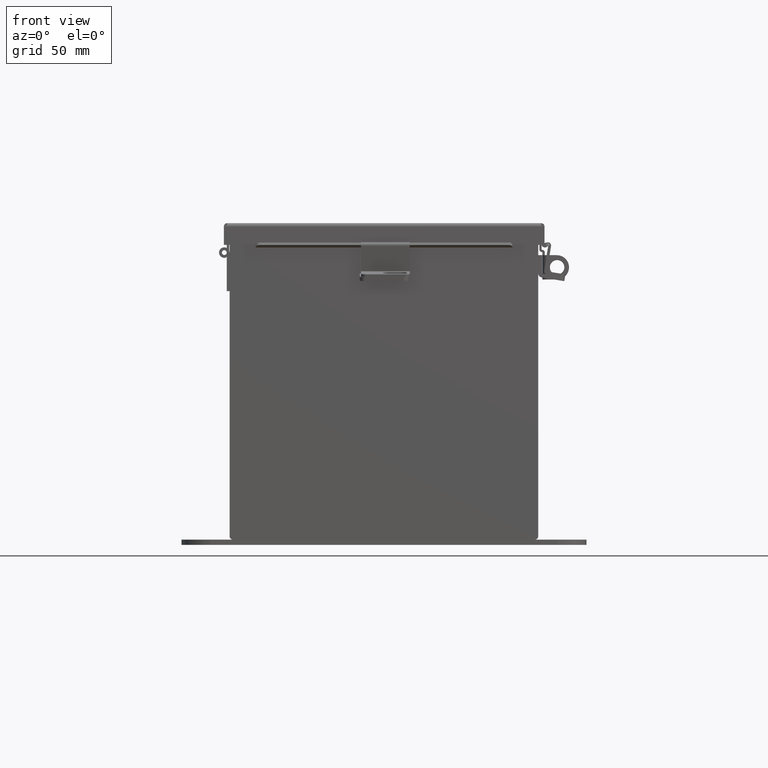
[diagram: clean part render]
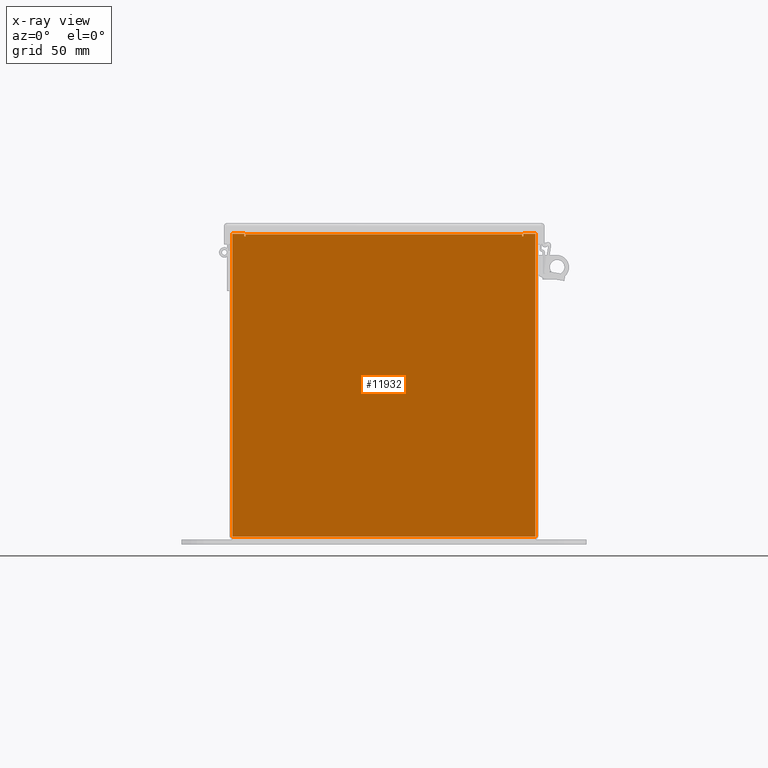
[diagram: x-ray — body ghosted, one internal face saturated and labeled with its STEP entity id]
A machine part, front view, then the same camera in x-ray: the body is ghosted and one INTERNAL B-rep face — a face not visible from any outside direction — is saturated and labeled: STEP entity #11932.
In plain terms, the highlighted planar face has unit normal (-0, 1, -0).
Its self-contained STEP definition (entity closure, byte-faithful):
#96 = LINE ( 'NONE', #11347, #15571 ) ;
#113 = EDGE_CURVE ( 'NONE', #3539, #4014, #7547, .T. ) ;
#358 = LINE ( 'NONE', #15336, #741 ) ;
#423 = VERTEX_POINT ( 'NONE', #2532 ) ;
#507 = DIRECTION ( 'NONE',  ( -1.000000000000000000, -5.526334185345597900E-031, 0.0000000000000000000 ) ) ;
#656 = DIRECTION ( 'NONE',  ( 0.0000000000000000000, 0.0000000000000000000, -1.000000000000000000 ) ) ;
#741 = VECTOR ( 'NONE', #754, 39.37007874015748100 ) ;
#754 = DIRECTION ( 'NONE',  ( 0.0000000000000000000, 0.0000000000000000000, 1.000000000000000000 ) ) ;
#878 = ORIENTED_EDGE ( 'NONE', *, *, #113, .F. ) ;
#1133 = CARTESIAN_POINT ( 'NONE',  ( -3.925300000000005300, -0.07470000000000015500, -3.925299999999999600 ) ) ;
#1492 = DIRECTION ( 'NONE',  ( 0.0000000000000000000, 0.0000000000000000000, 1.000000000000000000 ) ) ;
#2342 = CIRCLE ( 'NONE', #3689, 0.01867500000000003900 ) ;
#2506 = VECTOR ( 'NONE', #11562, 39.37007874015748100 ) ;
#2528 = DIRECTION ( 'NONE',  ( 0.0000000000000000000, 1.186875369640613200E-014, -1.000000000000000000 ) ) ;
#2532 = CARTESIAN_POINT ( 'NONE',  ( 3.925299999999994200, -0.07469999999999033000, 3.925299999999999100 ) ) ;
#2619 = EDGE_CURVE ( 'NONE', #12840, #3539, #11310, .T. ) ;
#3157 = AXIS2_PLACEMENT_3D ( 'NONE', #13309, #5995, #14555 ) ;
#3539 = VERTEX_POINT ( 'NONE', #5196 ) ;
#3689 = AXIS2_PLACEMENT_3D ( 'NONE', #15283, #7954, #656 ) ;
#3755 = EDGE_CURVE ( 'NONE', #6481, #11577, #12606, .T. ) ;
#3909 = CARTESIAN_POINT ( 'NONE',  ( -3.619650000000005400, -0.07470000000000015500, 3.925299999999999100 ) ) ;
#4014 = VERTEX_POINT ( 'NONE', #10796 ) ;
#4173 = ORIENTED_EDGE ( 'NONE', *, *, #11165, .F. ) ;
#4247 = CARTESIAN_POINT ( 'NONE',  ( -3.925300000000005300, -0.07470000000000015500, 3.925300000000000500 ) ) ;
#4360 = ORIENTED_EDGE ( 'NONE', *, *, #15070, .F. ) ;
#4781 = PLANE ( 'NONE',  #3157 ) ;
#4928 = VERTEX_POINT ( 'NONE', #7602 ) ;
#5165 = VERTEX_POINT ( 'NONE', #8122 ) ;
#5196 = CARTESIAN_POINT ( 'NONE',  ( -3.619650000000000500, -0.07469999999999907300, 3.874949999999999200 ) ) ;
#5260 = DIRECTION ( 'NONE',  ( 1.000000000000000000, 5.526334185345597900E-031, 0.0000000000000000000 ) ) ;
#5382 = CARTESIAN_POINT ( 'NONE',  ( -3.925300000000005300, -0.07470000000000015500, -3.925299999999999600 ) ) ;
#5421 = EDGE_CURVE ( 'NONE', #4928, #5165, #13598, .T. ) ;
#5460 = CARTESIAN_POINT ( 'NONE',  ( -3.582300000000004900, -0.07469999999999797600, 3.912299999999999200 ) ) ;
#5565 = VERTEX_POINT ( 'NONE', #4247 ) ;
#5631 = DIRECTION ( 'NONE',  ( -5.526334185345597900E-031, -1.000000000000000000, 0.0000000000000000000 ) ) ;
#5995 = DIRECTION ( 'NONE',  ( -5.526334185345597900E-031, -1.000000000000000000, -0.0000000000000000000 ) ) ;
#6362 = CARTESIAN_POINT ( 'NONE',  ( -3.925300000000005300, -0.07470000000000015500, 3.925300000000000500 ) ) ;
#6374 = CARTESIAN_POINT ( 'NONE',  ( 3.582299999999994300, -0.07469999999998923300, 3.912299999999997900 ) ) ;
#6481 = VERTEX_POINT ( 'NONE', #15139 ) ;
#6527 = EDGE_CURVE ( 'NONE', #13411, #4928, #8788, .T. ) ;
#6699 = EDGE_LOOP ( 'NONE', ( #878, #9941, #7223, #6809, #9531, #9483, #4173, #11077, #4360, #15257, #12553, #6822 ) ) ;
#6809 = ORIENTED_EDGE ( 'NONE', *, *, #12859, .F. ) ;
#6822 = ORIENTED_EDGE ( 'NONE', *, *, #7181, .F. ) ;
#7104 = VECTOR ( 'NONE', #12459, 39.37007874015748100 ) ;
#7181 = EDGE_CURVE ( 'NONE', #4014, #13411, #358, .T. ) ;
#7223 = ORIENTED_EDGE ( 'NONE', *, *, #7879, .F. ) ;
#7547 = CIRCLE ( 'NONE', #15309, 0.01867500000000003900 ) ;
#7580 = LINE ( 'NONE', #9379, #10437 ) ;
#7602 = CARTESIAN_POINT ( 'NONE',  ( 3.582299999999994300, -0.07469999999999033000, 3.912299999999997900 ) ) ;
#7878 = DIRECTION ( 'NONE',  ( 1.000000000000000000, 5.526334185345597900E-031, -0.0000000000000000000 ) ) ;
#7879 = EDGE_CURVE ( 'NONE', #5565, #12840, #7580, .T. ) ;
#7954 = DIRECTION ( 'NONE',  ( -5.526334185345597900E-031, -1.000000000000000000, 0.0000000000000000000 ) ) ;
#8122 = CARTESIAN_POINT ( 'NONE',  ( 3.582299999999999200, -0.07469999999999033000, 3.874949999999999200 ) ) ;
#8403 = VECTOR ( 'NONE', #7878, 39.37007874015748100 ) ;
#8788 = LINE ( 'NONE', #5460, #8403 ) ;
#9232 = LINE ( 'NONE', #9407, #15707 ) ;
#9363 = VECTOR ( 'NONE', #507, 39.37007874015748100 ) ;
#9379 = CARTESIAN_POINT ( 'NONE',  ( -3.925300000000005300, -0.07470000000000015500, 3.925300000000000500 ) ) ;
#9407 = CARTESIAN_POINT ( 'NONE',  ( 3.619649999999999100, -0.07469999999998923300, 3.874949999999999200 ) ) ;
#9483 = ORIENTED_EDGE ( 'NONE', *, *, #15734, .F. ) ;
#9531 = ORIENTED_EDGE ( 'NONE', *, *, #3755, .F. ) ;
#9830 = CARTESIAN_POINT ( 'NONE',  ( -3.619650000000005400, -0.07469999999999907300, 3.925299999999999100 ) ) ;
#9941 = ORIENTED_EDGE ( 'NONE', *, *, #2619, .F. ) ;
#10340 = CARTESIAN_POINT ( 'NONE',  ( 3.925299999999994200, -0.07469999999999033000, 3.925299999999999100 ) ) ;
#10373 = VECTOR ( 'NONE', #1492, 39.37007874015748100 ) ;
#10437 = VECTOR ( 'NONE', #15452, 39.37007874015748100 ) ;
#10617 = DIRECTION ( 'NONE',  ( 2.170286390199978800E-014, -1.186875369640613200E-014, 1.000000000000000000 ) ) ;
#10796 = CARTESIAN_POINT ( 'NONE',  ( -3.582300000000000000, -0.07469999999999907300, 3.874949999999999200 ) ) ;
#11077 = ORIENTED_EDGE ( 'NONE', *, *, #13488, .F. ) ;
#11165 = EDGE_CURVE ( 'NONE', #13883, #423, #96, .T. ) ;
#11310 = LINE ( 'NONE', #9830, #14174 ) ;
#11347 = CARTESIAN_POINT ( 'NONE',  ( -3.925300000000005300, -0.07470000000000015500, 3.925300000000000500 ) ) ;
#11562 = DIRECTION ( 'NONE',  ( 0.0000000000000000000, 0.0000000000000000000, -1.000000000000000000 ) ) ;
#11577 = VERTEX_POINT ( 'NONE', #1133 ) ;
#11932 = ADVANCED_FACE ( 'NONE', ( #12888 ), #4781, .T. ) ;
#12248 = LINE ( 'NONE', #10340, #2506 ) ;
#12364 = VERTEX_POINT ( 'NONE', #12834 ) ;
#12459 = DIRECTION ( 'NONE',  ( 0.0000000000000000000, 0.0000000000000000000, -1.000000000000000000 ) ) ;
#12553 = ORIENTED_EDGE ( 'NONE', *, *, #6527, .F. ) ;
#12606 = LINE ( 'NONE', #5382, #9363 ) ;
#12704 = CARTESIAN_POINT ( 'NONE',  ( -3.582300000000004900, -0.07470000000000015500, 3.912299999999999200 ) ) ;
#12834 = CARTESIAN_POINT ( 'NONE',  ( 3.619649999999999100, -0.07469999999999033000, 3.874949999999999200 ) ) ;
#12840 = VERTEX_POINT ( 'NONE', #3909 ) ;
#12859 = EDGE_CURVE ( 'NONE', #11577, #5565, #15161, .T. ) ;
#12888 = FACE_OUTER_BOUND ( 'NONE', #6699, .T. ) ;
#12947 = CARTESIAN_POINT ( 'NONE',  ( -3.600975000000000000, -0.07469999999999797600, 3.874949999999999200 ) ) ;
#13309 = CARTESIAN_POINT ( 'NONE',  ( 0.0000000000000000000, -0.07470000000000015500, 0.0000000000000000000 ) ) ;
#13411 = VERTEX_POINT ( 'NONE', #12704 ) ;
#13488 = EDGE_CURVE ( 'NONE', #12364, #13883, #9232, .T. ) ;
#13598 = LINE ( 'NONE', #6374, #7104 ) ;
#13721 = CARTESIAN_POINT ( 'NONE',  ( 3.619649999999995100, -0.07469999999999033000, 3.925300000000000500 ) ) ;
#13883 = VERTEX_POINT ( 'NONE', #13721 ) ;
#14174 = VECTOR ( 'NONE', #2528, 39.37007874015748100 ) ;
#14183 = DIRECTION ( 'NONE',  ( 0.0000000000000000000, 0.0000000000000000000, -1.000000000000000000 ) ) ;
#14555 = DIRECTION ( 'NONE',  ( 0.0000000000000000000, 0.0000000000000000000, -1.000000000000000000 ) ) ;
#15070 = EDGE_CURVE ( 'NONE', #5165, #12364, #2342, .T. ) ;
#15139 = CARTESIAN_POINT ( 'NONE',  ( 3.925299999999994200, -0.07469999999999033000, -3.925299999999999600 ) ) ;
#15161 = LINE ( 'NONE', #6362, #10373 ) ;
#15257 = ORIENTED_EDGE ( 'NONE', *, *, #5421, .F. ) ;
#15283 = CARTESIAN_POINT ( 'NONE',  ( 3.600974999999999100, -0.07469999999998923300, 3.874949999999999200 ) ) ;
#15309 = AXIS2_PLACEMENT_3D ( 'NONE', #12947, #5631, #14183 ) ;
#15336 = CARTESIAN_POINT ( 'NONE',  ( -3.582300000000000000, -0.07469999999999797600, 3.874949999999999200 ) ) ;
#15452 = DIRECTION ( 'NONE',  ( 1.000000000000000000, 5.526334185345597900E-031, 0.0000000000000000000 ) ) ;
#15571 = VECTOR ( 'NONE', #5260, 39.37007874015748100 ) ;
#15707 = VECTOR ( 'NONE', #10617, 39.37007874015748100 ) ;
#15734 = EDGE_CURVE ( 'NONE', #423, #6481, #12248, .T. ) ;